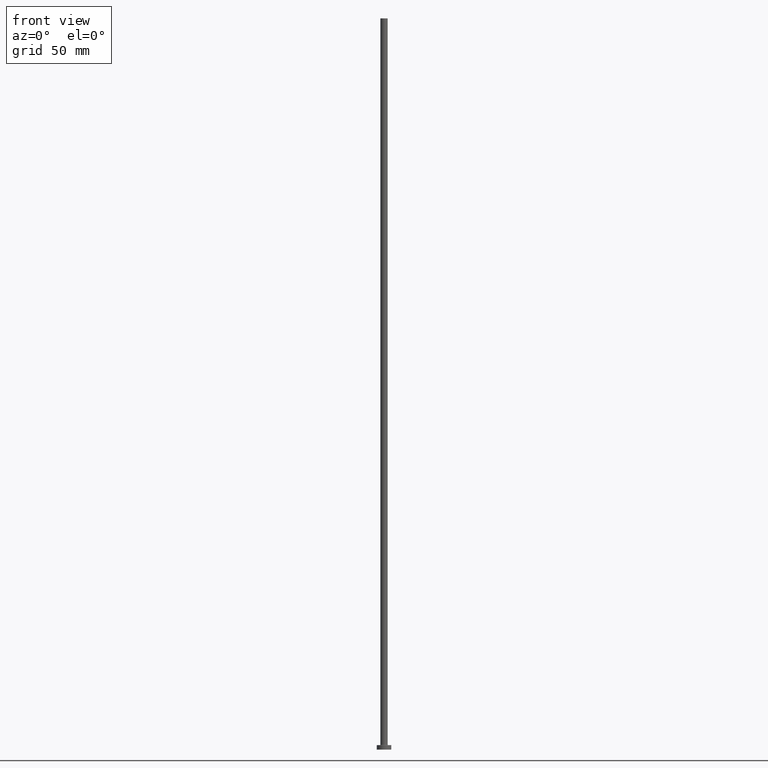
[diagram: clean part render]
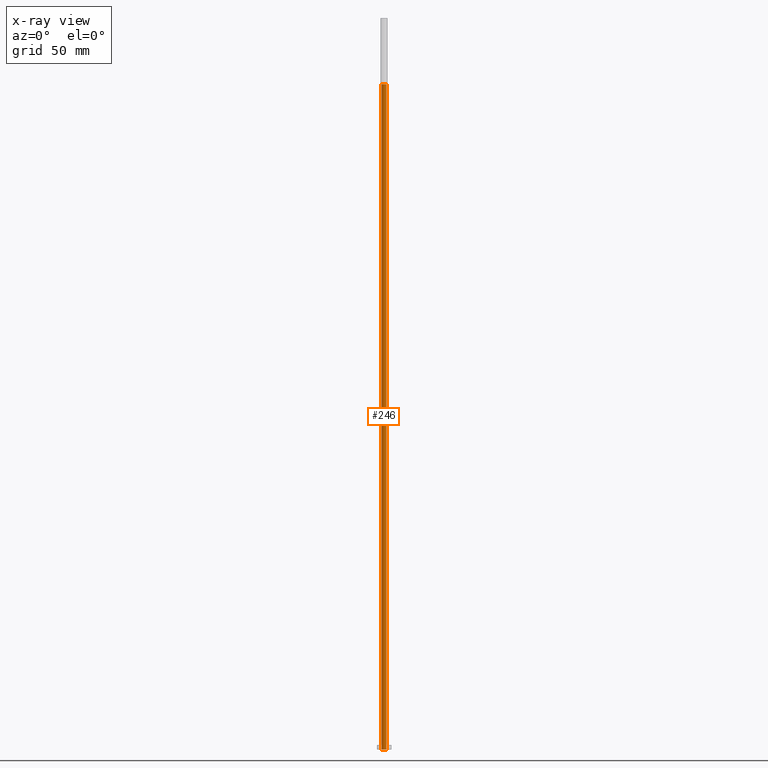
[diagram: x-ray — body ghosted, one internal face saturated and labeled with its STEP entity id]
A machine part, front view, then the same camera in x-ray: the body is ghosted and one INTERNAL B-rep face — a face not visible from any outside direction — is saturated and labeled: STEP entity #246.
In plain terms, the highlighted cylindrical surface (edge-blend (fillet) strip) has radius 1.65 mm, axis along (0, 0, -1).
Its self-contained STEP definition (entity closure, byte-faithful):
#36 = AXIS2_PLACEMENT_3D ( 'NONE', #42, #183, #338 ) ;
#42 = CARTESIAN_POINT ( 'NONE',  ( 0.000000000000000000, 0.000000000000000000, 0.000000000000000000 ) ) ;
#44 = ORIENTED_EDGE ( 'NONE', *, *, #75, .T. ) ;
#75 = EDGE_CURVE ( 'NONE', #444, #405, #273, .T. ) ;
#84 = VERTEX_POINT ( 'NONE', #88 ) ;
#88 = CARTESIAN_POINT ( 'NONE',  ( -1.650000000000000133, 0.000000000000000000, 455.0000000000000000 ) ) ;
#96 = CARTESIAN_POINT ( 'NONE',  ( 1.650000000000000133, 2.020667218593133001E-16, 459.6669047558312400 ) ) ;
#127 = EDGE_CURVE ( 'NONE', #84, #444, #171, .T. ) ;
#130 = DIRECTION ( 'NONE',  ( 1.000000000000000000, 0.000000000000000000, 0.000000000000000000 ) ) ;
#162 = CARTESIAN_POINT ( 'NONE',  ( 0.000000000000000000, 0.000000000000000000, 455.0000000000000000 ) ) ;
#163 = VECTOR ( 'NONE', #381, 1000.000000000000000 ) ;
#171 = CIRCLE ( 'NONE', #428, 1.650000000000000133 ) ;
#173 = CARTESIAN_POINT ( 'NONE',  ( -1.650000000000000133, 0.000000000000000000, 459.6669047558312400 ) ) ;
#183 = DIRECTION ( 'NONE',  ( -0.000000000000000000, -0.000000000000000000, -1.000000000000000000 ) ) ;
#187 = CARTESIAN_POINT ( 'NONE',  ( 0.000000000000000000, 0.000000000000000000, 459.6669047558312400 ) ) ;
#190 = EDGE_CURVE ( 'NONE', #405, #366, #249, .T. ) ;
#234 = DIRECTION ( 'NONE',  ( 0.000000000000000000, 0.000000000000000000, 1.000000000000000000 ) ) ;
#246 = ADVANCED_FACE ( 'NONE', ( #266 ), #416, .F. ) ;
#249 = CIRCLE ( 'NONE', #36, 1.650000000000000133 ) ;
#255 = ORIENTED_EDGE ( 'NONE', *, *, #190, .T. ) ;
#263 = ORIENTED_EDGE ( 'NONE', *, *, #329, .F. ) ;
#266 = FACE_OUTER_BOUND ( 'NONE', #372, .T. ) ;
#267 = VECTOR ( 'NONE', #312, 1000.000000000000000 ) ;
#273 = LINE ( 'NONE', #96, #163 ) ;
#278 = LINE ( 'NONE', #173, #267 ) ;
#290 = DIRECTION ( 'NONE',  ( 0.000000000000000000, 0.000000000000000000, -1.000000000000000000 ) ) ;
#298 = ORIENTED_EDGE ( 'NONE', *, *, #127, .T. ) ;
#302 = CARTESIAN_POINT ( 'NONE',  ( 1.650000000000000133, 2.020667218593133001E-16, 0.000000000000000000 ) ) ;
#304 = AXIS2_PLACEMENT_3D ( 'NONE', #187, #290, #440 ) ;
#312 = DIRECTION ( 'NONE',  ( 0.000000000000000000, 0.000000000000000000, -1.000000000000000000 ) ) ;
#329 = EDGE_CURVE ( 'NONE', #84, #366, #278, .T. ) ;
#338 = DIRECTION ( 'NONE',  ( 1.000000000000000000, 0.000000000000000000, 0.000000000000000000 ) ) ;
#366 = VERTEX_POINT ( 'NONE', #421 ) ;
#372 = EDGE_LOOP ( 'NONE', ( #298, #44, #255, #263 ) ) ;
#381 = DIRECTION ( 'NONE',  ( 0.000000000000000000, 0.000000000000000000, -1.000000000000000000 ) ) ;
#383 = CARTESIAN_POINT ( 'NONE',  ( 1.650000000000000133, 2.020667218593133001E-16, 455.0000000000000000 ) ) ;
#405 = VERTEX_POINT ( 'NONE', #302 ) ;
#416 = CYLINDRICAL_SURFACE ( 'NONE', #304, 1.650000000000000133 ) ;
#421 = CARTESIAN_POINT ( 'NONE',  ( -1.650000000000000133, 0.000000000000000000, 0.000000000000000000 ) ) ;
#428 = AXIS2_PLACEMENT_3D ( 'NONE', #162, #234, #130 ) ;
#440 = DIRECTION ( 'NONE',  ( -1.000000000000000000, 0.000000000000000000, 0.000000000000000000 ) ) ;
#444 = VERTEX_POINT ( 'NONE', #383 ) ;